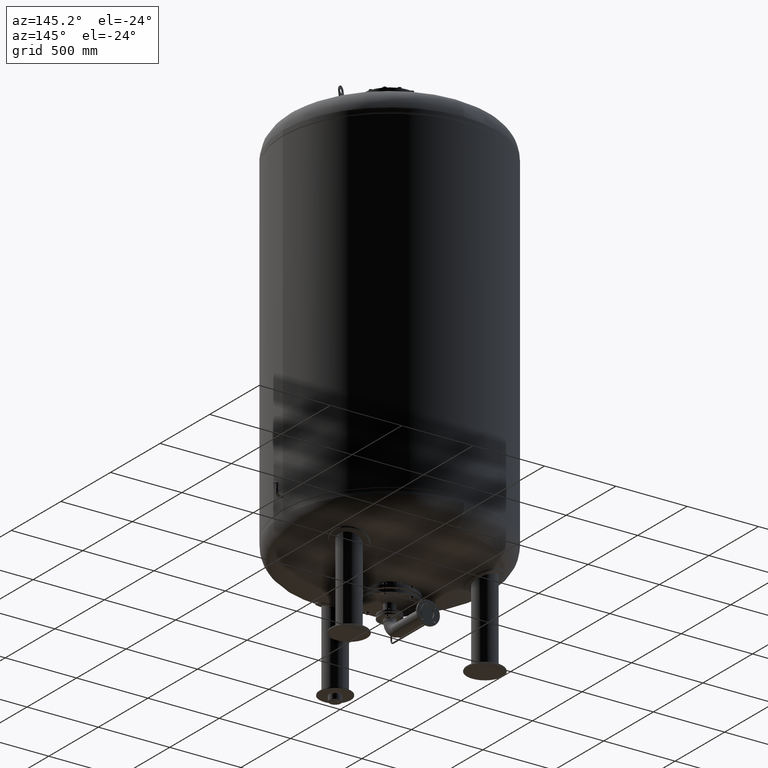
[diagram: clean part render]
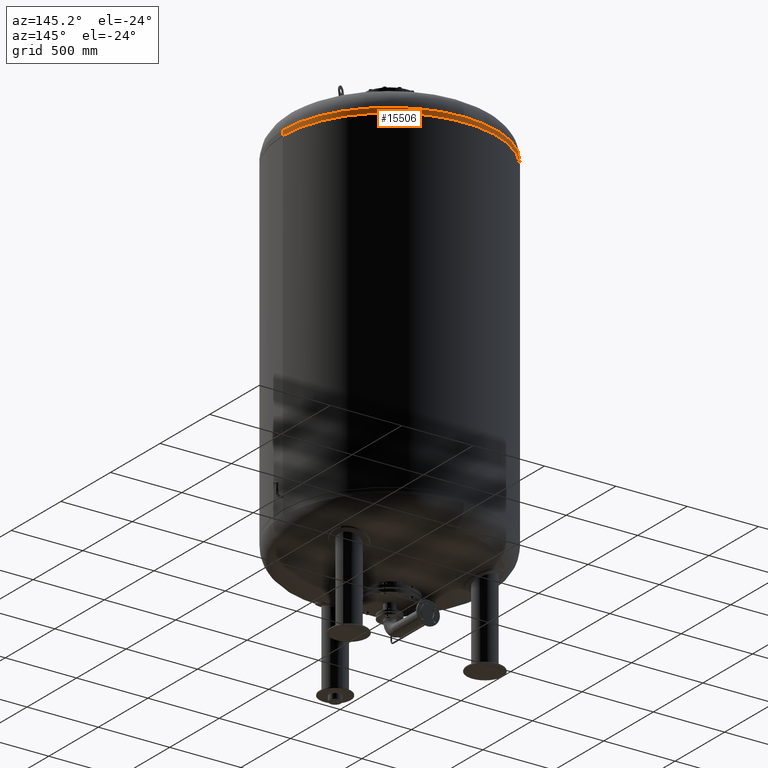
[diagram: same view with one face highlighted and labeled with its STEP entity id]
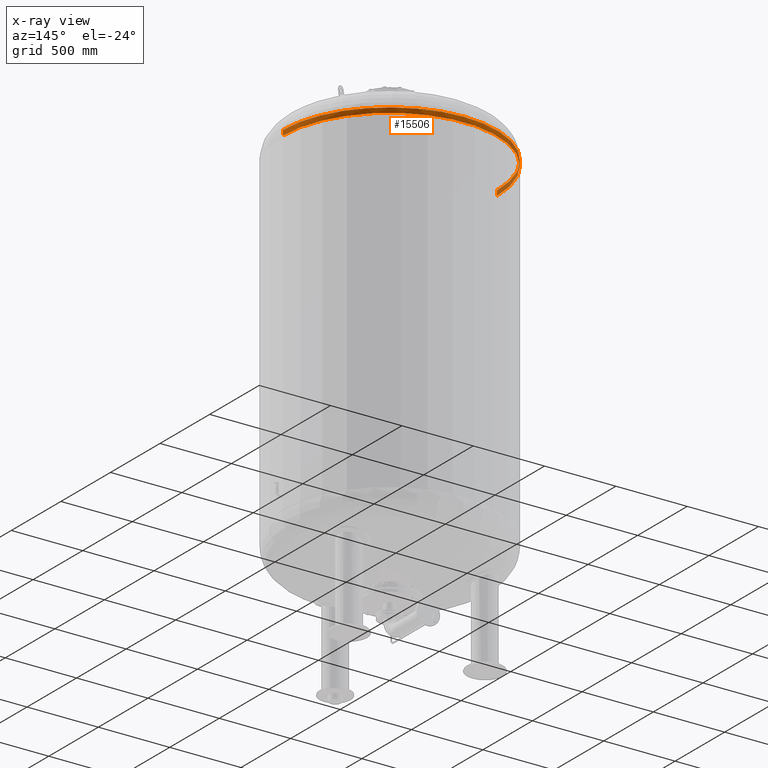
[diagram: x-ray of the same camera — body ghosted, the highlighted face saturated]
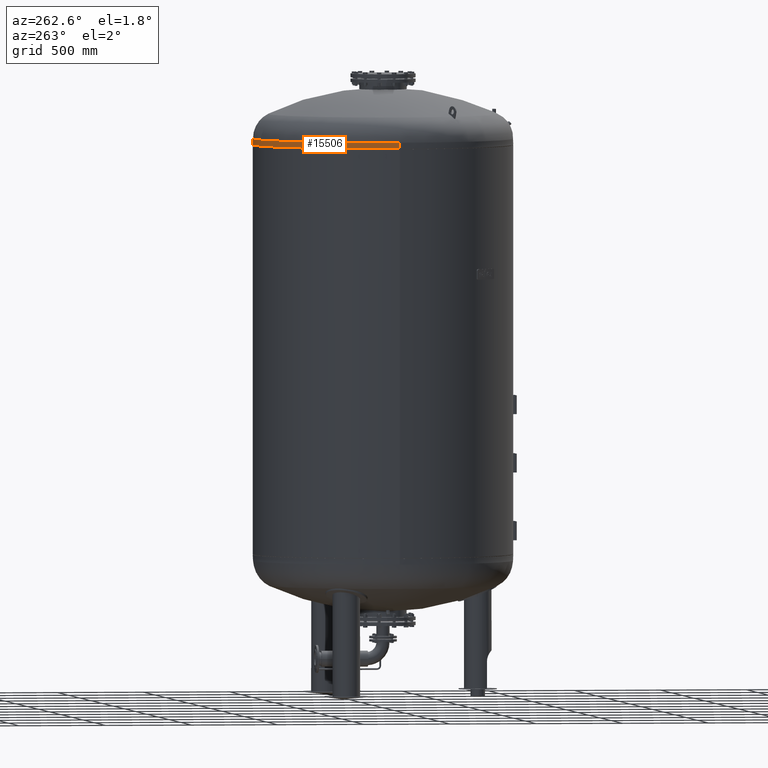
[diagram: same view with one face highlighted and labeled with its STEP entity id]
A machine part, auxiliary view. The second image highlights one B-rep face of the part: STEP entity #15506.
The next image is the same camera in x-ray: the body ghosted, the highlighted face saturated — about 7% of this face is hidden behind the body in this view.
A second angle (auxiliary view) of the same face is appended — the face is thin or edge-on in the first view.
In plain terms, the highlighted cylindrical surface (partial cylindrical patch) has radius 750 mm, axis along (0, -0, -1).
Its self-contained STEP definition (entity closure, byte-faithful):
#15456=CARTESIAN_POINT('',(1.545938E-014,-5.742715E-014,3196.381166292050700));
#15457=DIRECTION('',(4.945121E-017,-1.836970E-016,-1.0));
#15458=DIRECTION('',(1.0,0.0,0.0));
#15459=AXIS2_PLACEMENT_3D('',#15456,#15457,#15458);
#15460=CYLINDRICAL_SURFACE('',#15459,750.0);
#15461=CARTESIAN_POINT('',(750.0,-6.062002E-014,3179.0));
#15462=VERTEX_POINT('',#15461);
#15463=CARTESIAN_POINT('',(750.0,-5.423428E-014,3213.762332584101800));
#15464=VERTEX_POINT('',#15463);
#15465=CARTESIAN_POINT('',(750.0,-6.062002E-014,3179.0));
#15466=DIRECTION('',(0.0,0.0,1.0));
#15467=VECTOR('',#15466,34.762332584101841);
#15468=LINE('',#15465,#15467);
#15469=EDGE_CURVE('',#15462,#15464,#15468,.T.);
#15470=ORIENTED_EDGE('',*,*,#15469,.F.);
#15471=CARTESIAN_POINT('',(-750.0,3.122546E-014,3179.0));
#15472=VERTEX_POINT('',#15471);
#15473=CARTESIAN_POINT('',(1.631890E-014,-6.062002E-014,3179.0));
#15474=DIRECTION('',(0.0,0.0,-1.0));
#15475=DIRECTION('',(1.0,0.0,0.0));
#15476=AXIS2_PLACEMENT_3D('',#15473,#15474,#15475);
#15477=CIRCLE('',#15476,750.0);
#15478=EDGE_CURVE('',#15472,#15462,#15477,.T.);
#15479=ORIENTED_EDGE('',*,*,#15478,.F.);
#15480=CARTESIAN_POINT('',(-750.0,3.761120E-014,3213.762332584101800));
#15481=VERTEX_POINT('',#15480);
#15482=CARTESIAN_POINT('',(-750.0,3.122546E-014,3179.0));
#15483=DIRECTION('',(0.0,0.0,1.0));
#15484=VECTOR('',#15483,34.762332584101841);
#15485=LINE('',#15482,#15484);
#15486=EDGE_CURVE('',#15472,#15481,#15485,.T.);
#15487=ORIENTED_EDGE('',*,*,#15486,.T.);
#15488=CARTESIAN_POINT('',(1.267436E-013,750.0,3213.762332584101800));
#15489=VERTEX_POINT('',#15488);
#15490=CARTESIAN_POINT('',(1.459986E-014,-5.423428E-014,3213.762332584101800));
#15491=DIRECTION('',(0.0,0.0,-1.0));
#15492=DIRECTION('',(1.0,0.0,0.0));
#15493=AXIS2_PLACEMENT_3D('',#15490,#15491,#15492);
#15494=CIRCLE('',#15493,750.0);
#15495=EDGE_CURVE('',#15481,#15489,#15494,.T.);
#15496=ORIENTED_EDGE('',*,*,#15495,.T.);
#15497=CARTESIAN_POINT('',(1.459986E-014,-5.423428E-014,3213.762332584101800));
#15498=DIRECTION('',(0.0,0.0,-1.0));
#15499=DIRECTION('',(1.0,0.0,0.0));
#15500=AXIS2_PLACEMENT_3D('',#15497,#15498,#15499);
#15501=CIRCLE('',#15500,750.0);
#15502=EDGE_CURVE('',#15489,#15464,#15501,.T.);
#15503=ORIENTED_EDGE('',*,*,#15502,.T.);
#15504=EDGE_LOOP('',(#15470,#15479,#15487,#15496,#15503));
#15505=FACE_OUTER_BOUND('',#15504,.T.);
#15506=ADVANCED_FACE('',(#15505),#15460,.T.);